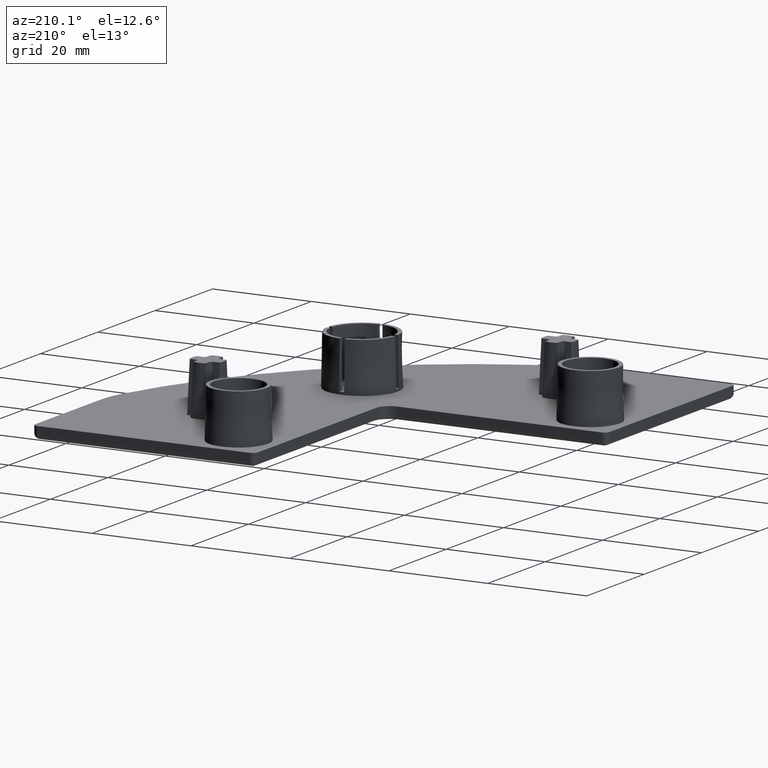
[diagram: clean part render]
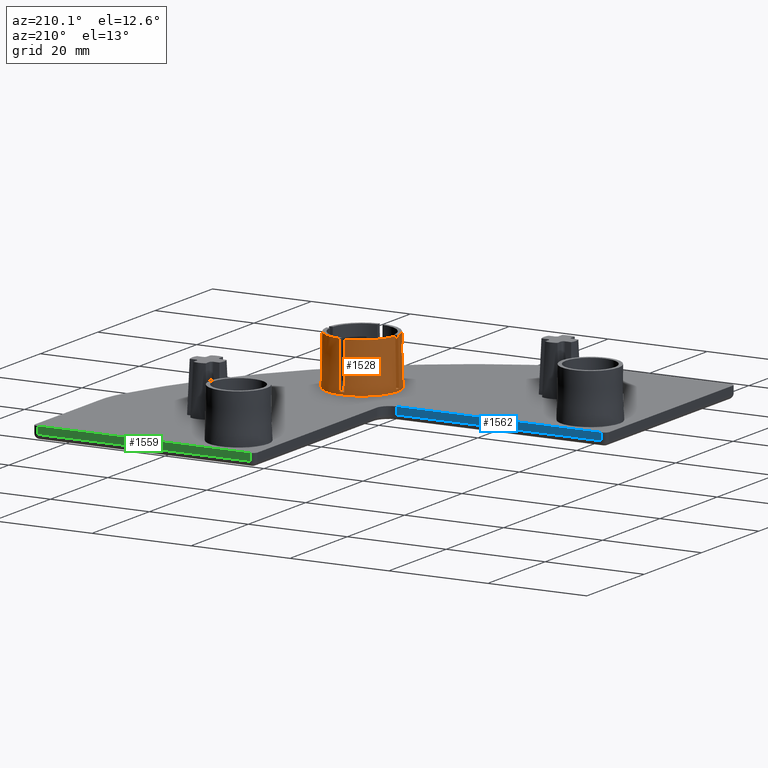
[diagram: same view with three faces highlighted in distinct colors, each labeled with its STEP entity id]
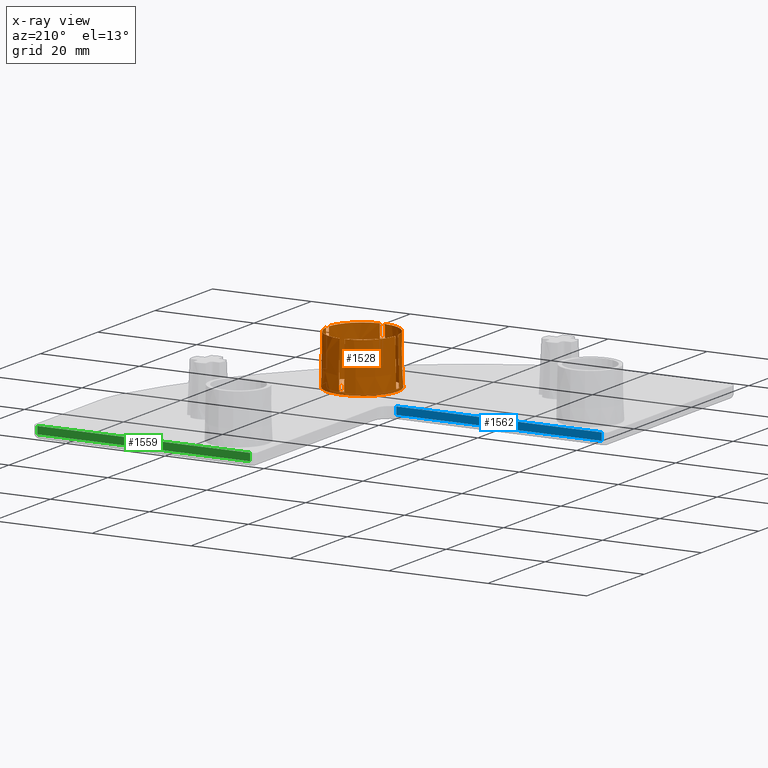
[diagram: x-ray of the same camera — body ghosted, the three highlighted faces saturated]
A machine part, auxiliary view with three faces highlighted in distinct colors.
The next image is the same camera in x-ray (body ghosted, the three faces saturated) — at least one of them is partly hidden behind the body in this view.
Their STEP definitions:

[orange] entity #1528 — the highlighted conical surface has half-angle 1.15 deg.
#62=CONICAL_SURFACE('',#1692,7.,0.0200712863979348);
#83=CIRCLE('',#1597,7.19070283009547);
#85=CIRCLE('',#1600,7.19070283009547);
#86=CIRCLE('',#1602,7.19070283009547);
#89=CIRCLE('',#1605,7.19070283009547);
#91=CIRCLE('',#1608,7.19070283009547);
#92=CIRCLE('',#1615,7.);
#94=CIRCLE('',#1618,7.);
#96=CIRCLE('',#1621,7.);
#132=CIRCLE('',#1693,7.);
#133=CIRCLE('',#1694,7.20073982115312);
#226=FACE_OUTER_BOUND('',#317,.T.);
#317=EDGE_LOOP('',(#1217,#1218,#1219,#1220,#1221,#1222,#1223,#1224,#1225,
#1226,#1227,#1228,#1229,#1230,#1231,#1232,#1233,#1234,#1235,#1236));
#367=LINE('',#2275,#485);
#371=LINE('',#2284,#489);
#375=LINE('',#2293,#493);
#382=LINE('',#2328,#500);
#385=LINE('',#2334,#503);
#390=LINE('',#2343,#508);
#393=LINE('',#2349,#511);
#396=LINE('',#2355,#514);
#446=LINE('',#2599,#564);
#485=VECTOR('',#1783,10.);
#489=VECTOR('',#1789,10.);
#493=VECTOR('',#1795,10.);
#500=VECTOR('',#1832,10.);
#503=VECTOR('',#1837,10.);
#508=VECTOR('',#1844,10.);
#511=VECTOR('',#1849,10.);
#514=VECTOR('',#1854,10.);
#564=VECTOR('',#2064,7.);
#603=VERTEX_POINT('',#2272);
#604=VERTEX_POINT('',#2274);
#607=VERTEX_POINT('',#2281);
#608=VERTEX_POINT('',#2283);
#611=VERTEX_POINT('',#2290);
#612=VERTEX_POINT('',#2292);
#614=VERTEX_POINT('',#2298);
#616=VERTEX_POINT('',#2304);
#617=VERTEX_POINT('',#2308);
#618=VERTEX_POINT('',#2309);
#622=VERTEX_POINT('',#2317);
#624=VERTEX_POINT('',#2323);
#625=VERTEX_POINT('',#2327);
#627=VERTEX_POINT('',#2333);
#630=VERTEX_POINT('',#2341);
#632=VERTEX_POINT('',#2347);
#634=VERTEX_POINT('',#2353);
#700=VERTEX_POINT('',#2598);
#749=EDGE_CURVE('',#604,#603,#367,.T.);
#753=EDGE_CURVE('',#608,#607,#371,.T.);
#757=EDGE_CURVE('',#612,#611,#375,.T.);
#761=EDGE_CURVE('',#607,#614,#83,.T.);
#764=EDGE_CURVE('',#611,#616,#85,.T.);
#765=EDGE_CURVE('',#617,#618,#86,.T.);
#770=EDGE_CURVE('',#618,#622,#89,.T.);
#773=EDGE_CURVE('',#603,#624,#91,.T.);
#774=EDGE_CURVE('',#622,#625,#382,.T.);
#777=EDGE_CURVE('',#627,#617,#385,.T.);
#782=EDGE_CURVE('',#624,#630,#390,.T.);
#785=EDGE_CURVE('',#614,#632,#393,.T.);
#788=EDGE_CURVE('',#616,#634,#396,.T.);
#789=EDGE_CURVE('',#612,#625,#92,.T.);
#791=EDGE_CURVE('',#604,#632,#94,.T.);
#793=EDGE_CURVE('',#608,#634,#96,.T.);
#894=EDGE_CURVE('',#627,#630,#132,.T.);
#895=EDGE_CURVE('',#618,#700,#446,.T.);
#896=EDGE_CURVE('',#700,#700,#133,.T.);
#1217=ORIENTED_EDGE('',*,*,#782,.T.);
#1218=ORIENTED_EDGE('',*,*,#894,.F.);
#1219=ORIENTED_EDGE('',*,*,#777,.T.);
#1220=ORIENTED_EDGE('',*,*,#765,.T.);
#1221=ORIENTED_EDGE('',*,*,#895,.T.);
#1222=ORIENTED_EDGE('',*,*,#896,.F.);
#1223=ORIENTED_EDGE('',*,*,#895,.F.);
#1224=ORIENTED_EDGE('',*,*,#770,.T.);
#1225=ORIENTED_EDGE('',*,*,#774,.T.);
#1226=ORIENTED_EDGE('',*,*,#789,.F.);
#1227=ORIENTED_EDGE('',*,*,#757,.T.);
#1228=ORIENTED_EDGE('',*,*,#764,.T.);
#1229=ORIENTED_EDGE('',*,*,#788,.T.);
#1230=ORIENTED_EDGE('',*,*,#793,.F.);
#1231=ORIENTED_EDGE('',*,*,#753,.T.);
#1232=ORIENTED_EDGE('',*,*,#761,.T.);
#1233=ORIENTED_EDGE('',*,*,#785,.T.);
#1234=ORIENTED_EDGE('',*,*,#791,.F.);
#1235=ORIENTED_EDGE('',*,*,#749,.T.);
#1236=ORIENTED_EDGE('',*,*,#773,.T.);
#1528=ADVANCED_FACE('',(#226),#62,.T.);
#1597=AXIS2_PLACEMENT_3D('',#2300,#1802,#1803);
#1600=AXIS2_PLACEMENT_3D('',#2306,#1809,#1810);
#1602=AXIS2_PLACEMENT_3D('',#2310,#1813,#1814);
#1605=AXIS2_PLACEMENT_3D('',#2319,#1821,#1822);
#1608=AXIS2_PLACEMENT_3D('',#2325,#1828,#1829);
#1615=AXIS2_PLACEMENT_3D('',#2357,#1857,#1858);
#1618=AXIS2_PLACEMENT_3D('',#2360,#1863,#1864);
#1621=AXIS2_PLACEMENT_3D('',#2363,#1869,#1870);
#1692=AXIS2_PLACEMENT_3D('',#2596,#2060,#2061);
#1693=AXIS2_PLACEMENT_3D('',#2597,#2062,#2063);
#1694=AXIS2_PLACEMENT_3D('',#2600,#2065,#2066);
#1783=DIRECTION('',(0.,0.0201199460264314,-0.999797573397682));
#1789=DIRECTION('',(-0.0201199460264314,0.,-0.999797573397682));
#1795=DIRECTION('',(0.,-0.0201199460264314,-0.999797573397682));
#1802=DIRECTION('center_axis',(0.,0.,-1.));
#1803=DIRECTION('ref_axis',(-1.,0.,0.));
#1809=DIRECTION('center_axis',(0.,0.,-1.));
#1810=DIRECTION('ref_axis',(-1.,0.,0.));
#1813=DIRECTION('center_axis',(0.,0.,-1.));
#1814=DIRECTION('ref_axis',(-1.,0.,0.));
#1821=DIRECTION('center_axis',(0.,0.,-1.));
#1822=DIRECTION('ref_axis',(-1.,0.,0.));
#1828=DIRECTION('center_axis',(0.,0.,-1.));
#1829=DIRECTION('ref_axis',(-1.,0.,0.));
#1832=DIRECTION('',(-0.0201199460264314,0.,0.999797573397682));
#1837=DIRECTION('',(0.0201199460264314,0.,-0.999797573397682));
#1844=DIRECTION('',(0.,-0.0201199460264314,0.999797573397682));
#1849=DIRECTION('',(0.0201199460264314,0.,0.999797573397682));
#1854=DIRECTION('',(0.,0.0201199460264314,0.999797573397682));
#1857=DIRECTION('center_axis',(0.,0.,1.));
#1858=DIRECTION('ref_axis',(-1.,0.,0.));
#1863=DIRECTION('center_axis',(0.,0.,1.));
#1864=DIRECTION('ref_axis',(-1.,0.,0.));
#1869=DIRECTION('center_axis',(0.,0.,1.));
#1870=DIRECTION('ref_axis',(-1.,0.,0.));
#2060=DIRECTION('center_axis',(0.,0.,-1.));
#2061=DIRECTION('ref_axis',(-1.,0.,0.));
#2062=DIRECTION('center_axis',(0.,0.,1.));
#2063=DIRECTION('ref_axis',(-1.,0.,0.));
#2064=DIRECTION('',(0.020069938783589,2.45785862904056E-18,-0.9997985784933));
#2065=DIRECTION('center_axis',(0.,0.,-1.));
#2066=DIRECTION('ref_axis',(-1.,0.,0.));
#2272=CARTESIAN_POINT('',(-12.5,19.1732982086864,0.499999999999999));
#2274=CARTESIAN_POINT('',(-12.5,18.9821200218845,10.));
#2275=CARTESIAN_POINT('',(-12.5,19.0777091152854,5.25));
#2281=CARTESIAN_POINT('',(-19.1732982086864,11.5,0.499999999999999));
#2283=CARTESIAN_POINT('',(-18.9821200218845,11.5,10.));
#2284=CARTESIAN_POINT('',(-19.0777091152854,11.5,5.25));
#2290=CARTESIAN_POINT('',(-11.5,4.82670179131363,0.499999999999999));
#2292=CARTESIAN_POINT('',(-11.5,5.01787997811552,10.));
#2293=CARTESIAN_POINT('',(-11.5,4.92229088471458,5.25));
#2298=CARTESIAN_POINT('',(-19.1732982086864,12.5,0.499999999999999));
#2300=CARTESIAN_POINT('Origin',(-12.,12.,0.5));
#2304=CARTESIAN_POINT('',(-12.5,4.82670179131363,0.499999999999999));
#2306=CARTESIAN_POINT('Origin',(-12.,12.,0.5));
#2308=CARTESIAN_POINT('',(-4.82670179131363,12.5,0.499999999999999));
#2309=CARTESIAN_POINT('',(-4.80929716990453,12.,0.5));
#2310=CARTESIAN_POINT('Origin',(-12.,12.,0.5));
#2317=CARTESIAN_POINT('',(-4.82670179131363,11.5,0.499999999999999));
#2319=CARTESIAN_POINT('Origin',(-12.,12.,0.5));
#2323=CARTESIAN_POINT('',(-11.5,19.1732982086864,0.499999999999999));
#2325=CARTESIAN_POINT('Origin',(-12.,12.,0.5));
#2327=CARTESIAN_POINT('',(-5.01787997811552,11.5,10.));
#2328=CARTESIAN_POINT('',(-4.92229088471458,11.5,5.25));
#2333=CARTESIAN_POINT('',(-5.01787997811552,12.5,10.));
#2334=CARTESIAN_POINT('',(-4.92229088471458,12.5,5.25));
#2341=CARTESIAN_POINT('',(-11.5,18.9821200218845,10.));
#2343=CARTESIAN_POINT('',(-11.5,19.0777091152854,5.25));
#2347=CARTESIAN_POINT('',(-18.9821200218845,12.5,10.));
#2349=CARTESIAN_POINT('',(-19.0777091152854,12.5,5.25));
#2353=CARTESIAN_POINT('',(-12.5,5.01787997811552,10.));
#2355=CARTESIAN_POINT('',(-12.5,4.92229088471458,5.25));
#2357=CARTESIAN_POINT('Origin',(-12.,12.,10.));
#2360=CARTESIAN_POINT('Origin',(-12.,12.,10.));
#2363=CARTESIAN_POINT('Origin',(-12.,12.,10.));
#2596=CARTESIAN_POINT('Origin',(-12.,12.,10.));
#2597=CARTESIAN_POINT('Origin',(-12.,12.,10.));
#2598=CARTESIAN_POINT('',(-4.79926017884687,12.,0.));
#2599=CARTESIAN_POINT('',(-4.99999999999999,12.,10.));
#2600=CARTESIAN_POINT('Origin',(-12.,12.,0.));

[blue] entity #1562 — the highlighted planar face has unit normal (0, 1, 0).
#260=FACE_OUTER_BOUND('',#358,.T.);
#358=EDGE_LOOP('',(#1406,#1407,#1408,#1409));
#452=LINE('',#2635,#570);
#463=LINE('',#2706,#581);
#477=LINE('',#2752,#595);
#479=LINE('',#2755,#597);
#570=VECTOR('',#2106,10.);
#581=VECTOR('',#2183,10.);
#595=VECTOR('',#2247,10.);
#597=VECTOR('',#2251,10.);
#711=VERTEX_POINT('',#2632);
#712=VERTEX_POINT('',#2634);
#738=VERTEX_POINT('',#2703);
#739=VERTEX_POINT('',#2705);
#911=EDGE_CURVE('',#712,#711,#452,.T.);
#945=EDGE_CURVE('',#738,#739,#463,.T.);
#969=EDGE_CURVE('',#711,#739,#477,.T.);
#971=EDGE_CURVE('',#712,#738,#479,.T.);
#1406=ORIENTED_EDGE('',*,*,#945,.F.);
#1407=ORIENTED_EDGE('',*,*,#971,.F.);
#1408=ORIENTED_EDGE('',*,*,#911,.T.);
#1409=ORIENTED_EDGE('',*,*,#969,.T.);
#1474=PLANE('',#1770);
#1562=ADVANCED_FACE('',(#260),#1474,.T.);
#1770=AXIS2_PLACEMENT_3D('',#2754,#2249,#2250);
#2106=DIRECTION('',(1.,0.,0.));
#2183=DIRECTION('',(1.,0.,0.));
#2247=DIRECTION('',(0.,0.,-1.));
#2249=DIRECTION('center_axis',(0.,1.,0.));
#2250=DIRECTION('ref_axis',(1.,0.,0.));
#2251=DIRECTION('',(0.,0.,-1.));
#2632=CARTESIAN_POINT('',(-25.,22.5,0.));
#2634=CARTESIAN_POINT('',(-66.5,22.5,0.));
#2635=CARTESIAN_POINT('',(-66.5,22.5,0.));
#2703=CARTESIAN_POINT('',(-66.5,22.5,-1.5));
#2705=CARTESIAN_POINT('',(-25.,22.5,-1.5));
#2706=CARTESIAN_POINT('',(-45.0417599345795,22.5,-1.5));
#2752=CARTESIAN_POINT('',(-25.,22.5,0.));
#2754=CARTESIAN_POINT('Origin',(-66.5,22.5,0.));
#2755=CARTESIAN_POINT('',(-66.5,22.5,0.));

[green] entity #1559 — the highlighted planar face has unit normal (0, 1, 0).
#257=FACE_OUTER_BOUND('',#355,.T.);
#355=EDGE_LOOP('',(#1388,#1389,#1390,#1391));
#456=LINE('',#2655,#574);
#467=LINE('',#2728,#585);
#475=LINE('',#2747,#593);
#476=LINE('',#2749,#594);
#574=VECTOR('',#2122,10.);
#585=VECTOR('',#2209,10.);
#593=VECTOR('',#2239,10.);
#594=VECTOR('',#2242,10.);
#721=VERTEX_POINT('',#2652);
#722=VERTEX_POINT('',#2654);
#745=VERTEX_POINT('',#2725);
#746=VERTEX_POINT('',#2727);
#921=EDGE_CURVE('',#722,#721,#456,.T.);
#956=EDGE_CURVE('',#745,#746,#467,.T.);
#967=EDGE_CURVE('',#721,#746,#475,.T.);
#968=EDGE_CURVE('',#722,#745,#476,.T.);
#1388=ORIENTED_EDGE('',*,*,#956,.F.);
#1389=ORIENTED_EDGE('',*,*,#968,.F.);
#1390=ORIENTED_EDGE('',*,*,#921,.T.);
#1391=ORIENTED_EDGE('',*,*,#967,.T.);
#1472=PLANE('',#1767);
#1559=ADVANCED_FACE('',(#257),#1472,.T.);
#1767=AXIS2_PLACEMENT_3D('',#2748,#2240,#2241);
#2122=DIRECTION('',(1.,0.,0.));
#2209=DIRECTION('',(1.,0.,0.));
#2239=DIRECTION('',(0.,0.,-1.));
#2240=DIRECTION('center_axis',(0.,1.,0.));
#2241=DIRECTION('ref_axis',(1.,0.,0.));
#2242=DIRECTION('',(0.,0.,-1.));
#2652=CARTESIAN_POINT('',(21.5,67.5,0.));
#2654=CARTESIAN_POINT('',(-21.5,67.5,0.));
#2655=CARTESIAN_POINT('',(-21.5,67.5,0.));
#2725=CARTESIAN_POINT('',(-21.5,67.5,-1.5));
#2727=CARTESIAN_POINT('',(21.5,67.5,-1.5));
#2728=CARTESIAN_POINT('',(-22.5417599345795,67.5,-1.5));
#2747=CARTESIAN_POINT('',(21.5,67.5,0.));
#2748=CARTESIAN_POINT('Origin',(-21.5,67.5,0.));
#2749=CARTESIAN_POINT('',(-21.5,67.5,0.));